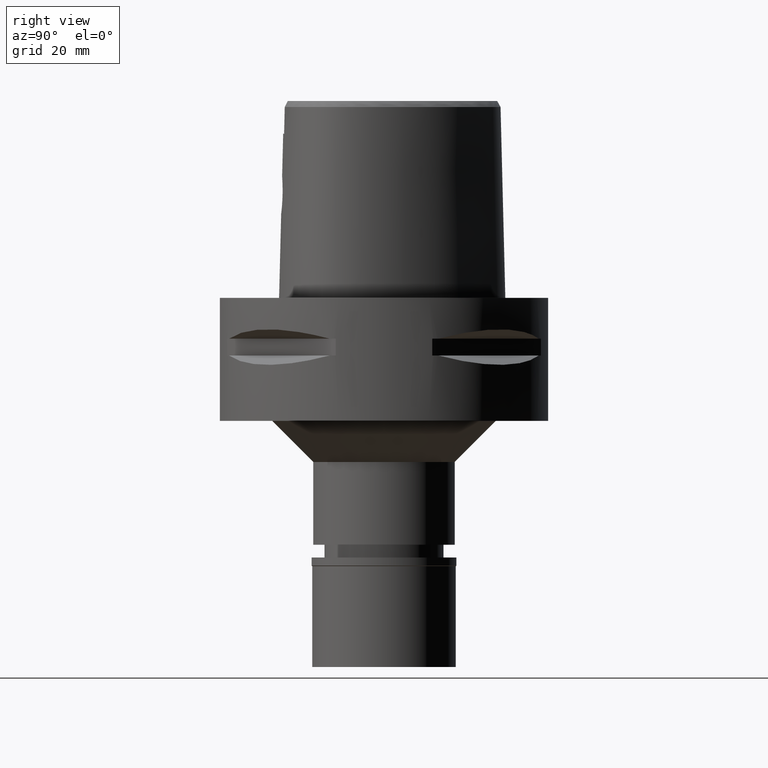
[diagram: clean part render]
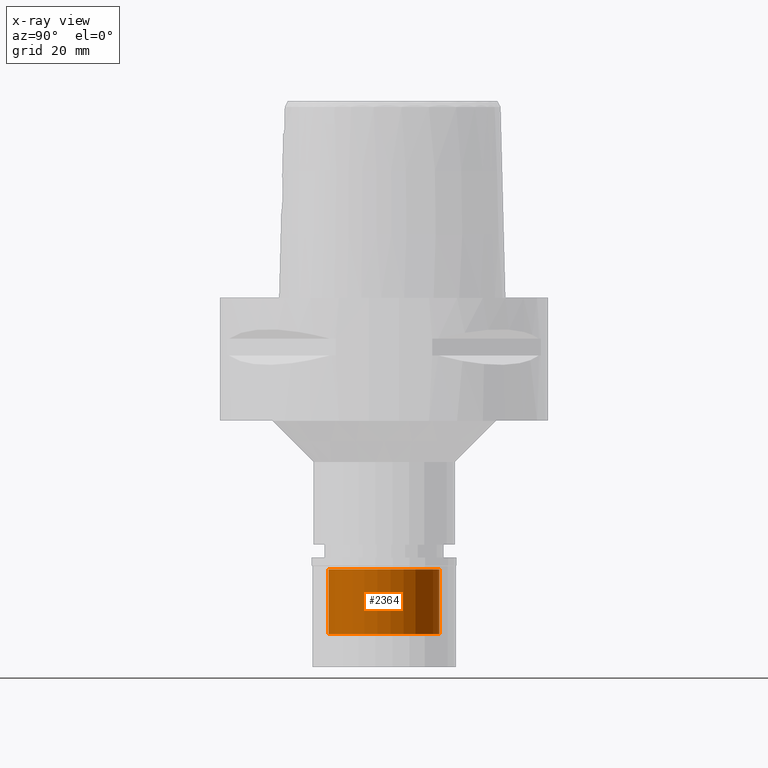
[diagram: x-ray — body ghosted, one internal face saturated and labeled with its STEP entity id]
A machine part, right view, then the same camera in x-ray: the body is ghosted and one INTERNAL B-rep face — a face not visible from any outside direction — is saturated and labeled: STEP entity #2364.
In plain terms, the highlighted cylindrical surface (partial cylindrical patch) has radius 13.5 mm, axis along (0, 0, -1).
Its self-contained STEP definition (entity closure, byte-faithful):
#171 = ORIENTED_EDGE ( 'NONE', *, *, #2298, .T. ) ;
#257 = CARTESIAN_POINT ( 'NONE',  ( 0.0000000000000000000, 0.0000000000000000000, 0.0000000000000000000 ) ) ;
#349 = VERTEX_POINT ( 'NONE', #1844 ) ;
#451 = CARTESIAN_POINT ( 'NONE',  ( 0.0000000000000000000, 0.0000000000000000000, -2.899999999999999911 ) ) ;
#505 = CARTESIAN_POINT ( 'NONE',  ( 0.0000000000000000000, -13.50000000000000000, -18.70000000000000284 ) ) ;
#658 = EDGE_LOOP ( 'NONE', ( #4594, #3884, #171, #4984 ) ) ;
#992 = LINE ( 'NONE', #4101, #3281 ) ;
#1059 = CARTESIAN_POINT ( 'NONE',  ( 0.0000000000000000000, 0.0000000000000000000, -18.70000000000000284 ) ) ;
#1109 = VECTOR ( 'NONE', #3600, 1000.000000000000000 ) ;
#1291 = VERTEX_POINT ( 'NONE', #2929 ) ;
#1775 = FACE_OUTER_BOUND ( 'NONE', #658, .T. ) ;
#1844 = CARTESIAN_POINT ( 'NONE',  ( 0.0000000000000000000, 13.50000000000000000, -2.899999999999999911 ) ) ;
#1922 = EDGE_CURVE ( 'NONE', #3238, #2445, #4785, .T. ) ;
#2013 = AXIS2_PLACEMENT_3D ( 'NONE', #257, #2623, #4970 ) ;
#2014 = DIRECTION ( 'NONE',  ( 0.0000000000000000000, 0.0000000000000000000, 1.000000000000000000 ) ) ;
#2298 = EDGE_CURVE ( 'NONE', #2445, #349, #2516, .T. ) ;
#2364 = ADVANCED_FACE ( 'NONE', ( #1775 ), #4563, .F. ) ;
#2445 = VERTEX_POINT ( 'NONE', #3359 ) ;
#2516 = CIRCLE ( 'NONE', #2910, 13.50000000000000000 ) ;
#2610 = DIRECTION ( 'NONE',  ( 0.0000000000000000000, 0.0000000000000000000, 1.000000000000000000 ) ) ;
#2623 = DIRECTION ( 'NONE',  ( 0.0000000000000000000, 0.0000000000000000000, -1.000000000000000000 ) ) ;
#2874 = AXIS2_PLACEMENT_3D ( 'NONE', #1059, #4916, #3714 ) ;
#2910 = AXIS2_PLACEMENT_3D ( 'NONE', #451, #2014, #3575 ) ;
#2929 = CARTESIAN_POINT ( 'NONE',  ( 0.0000000000000000000, 13.50000000000000000, -18.70000000000000284 ) ) ;
#3027 = CIRCLE ( 'NONE', #2874, 13.50000000000000000 ) ;
#3166 = EDGE_CURVE ( 'NONE', #1291, #349, #992, .T. ) ;
#3238 = VERTEX_POINT ( 'NONE', #4074 ) ;
#3281 = VECTOR ( 'NONE', #2610, 1000.000000000000000 ) ;
#3359 = CARTESIAN_POINT ( 'NONE',  ( 0.0000000000000000000, -13.50000000000000000, -2.899999999999999911 ) ) ;
#3575 = DIRECTION ( 'NONE',  ( 0.0000000000000000000, -1.000000000000000000, 0.0000000000000000000 ) ) ;
#3600 = DIRECTION ( 'NONE',  ( 0.0000000000000000000, 0.0000000000000000000, 1.000000000000000000 ) ) ;
#3714 = DIRECTION ( 'NONE',  ( 0.0000000000000000000, 1.000000000000000000, 0.0000000000000000000 ) ) ;
#3884 = ORIENTED_EDGE ( 'NONE', *, *, #1922, .T. ) ;
#4004 = EDGE_CURVE ( 'NONE', #1291, #3238, #3027, .T. ) ;
#4074 = CARTESIAN_POINT ( 'NONE',  ( 0.0000000000000000000, -13.50000000000000000, -18.70000000000000284 ) ) ;
#4101 = CARTESIAN_POINT ( 'NONE',  ( 0.0000000000000000000, 13.50000000000000000, -18.70000000000000284 ) ) ;
#4563 = CYLINDRICAL_SURFACE ( 'NONE', #2013, 13.50000000000000000 ) ;
#4594 = ORIENTED_EDGE ( 'NONE', *, *, #4004, .T. ) ;
#4785 = LINE ( 'NONE', #505, #1109 ) ;
#4916 = DIRECTION ( 'NONE',  ( 0.0000000000000000000, 0.0000000000000000000, -1.000000000000000000 ) ) ;
#4970 = DIRECTION ( 'NONE',  ( 0.0000000000000000000, -1.000000000000000000, 0.0000000000000000000 ) ) ;
#4984 = ORIENTED_EDGE ( 'NONE', *, *, #3166, .F. ) ;